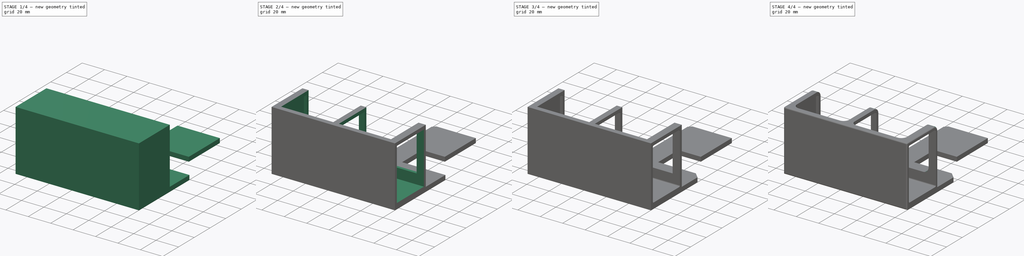
[diagram: build sequence overview — one tinted view per stage of 4, left to right]
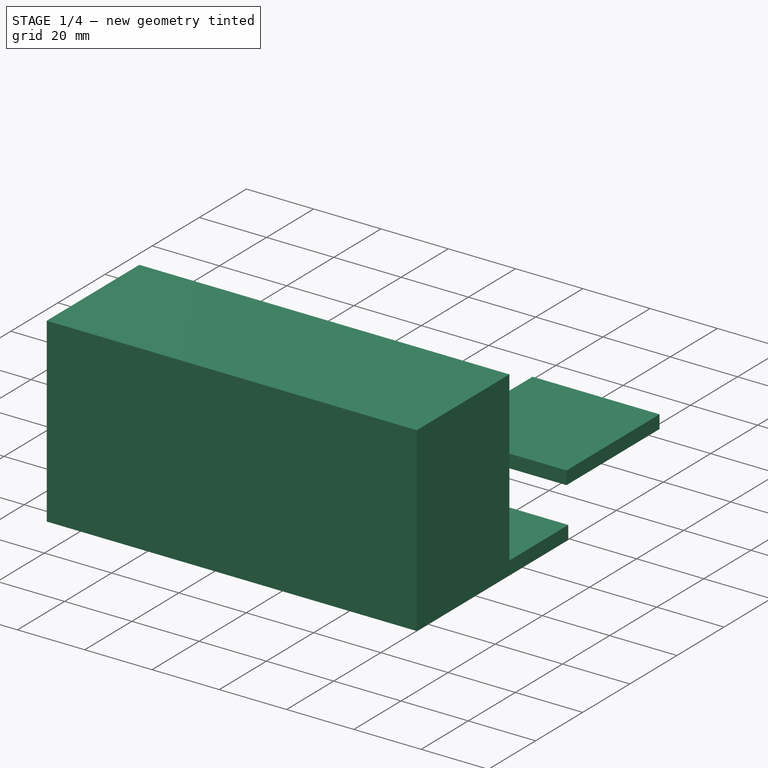
[diagram: stage 1 of 4 — iso view after this stage's code; geometry added in this stage tinted green]
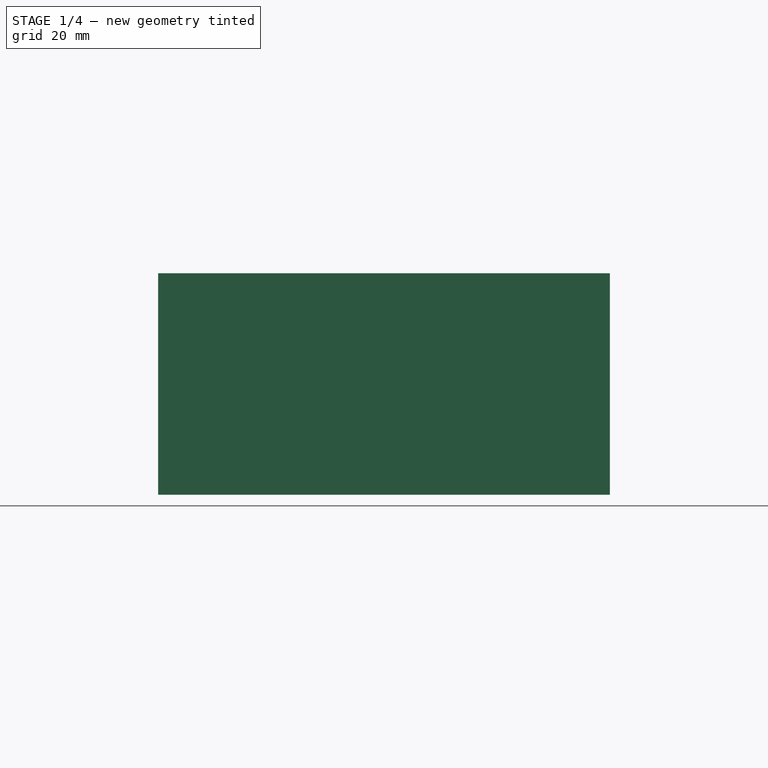
[diagram: stage 1 of 4 — front view after this stage's code; geometry added in this stage tinted green]
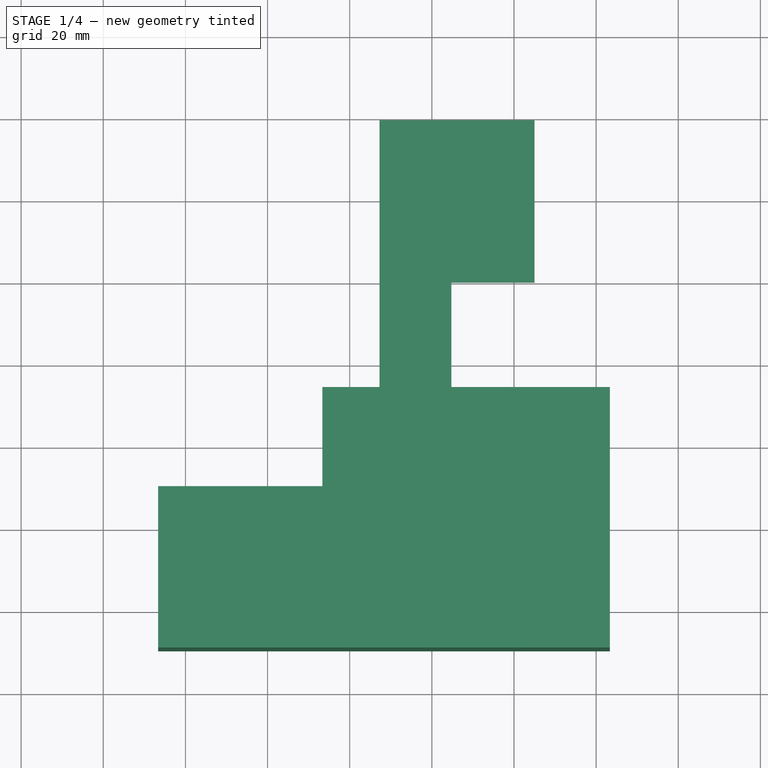
[diagram: stage 1 of 4 — top view after this stage's code; geometry added in this stage tinted green]
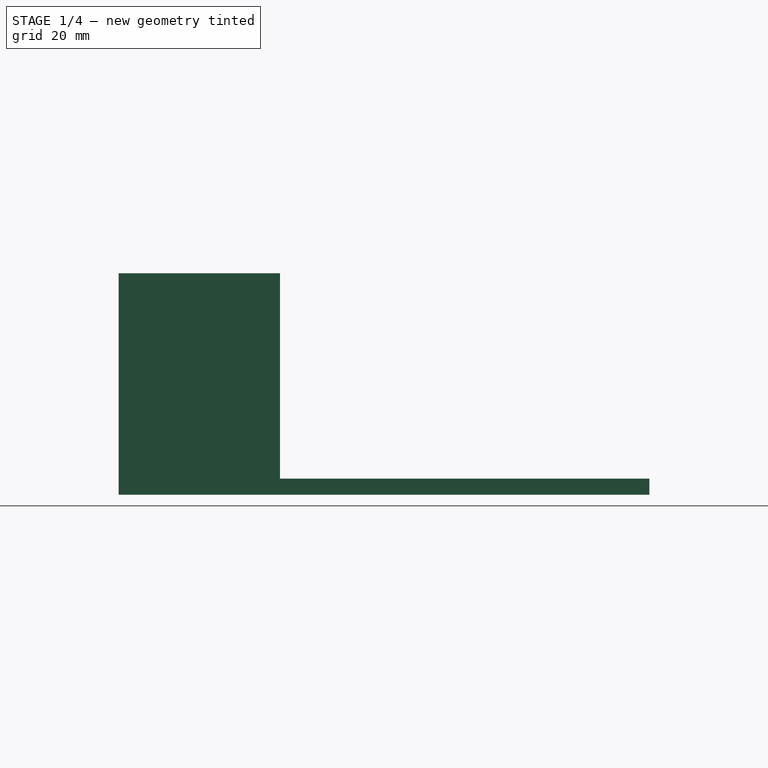
[diagram: stage 1 of 4 — right view after this stage's code; geometry added in this stage tinted green]
FCSTD DOCUMENT  (FreeCAD 1.0R39109 (Git))
Label: PortableMonitor_BatteryHolder_Base
License: All rights reserved
LicenseURL: https://en.wikipedia.org/wiki/All_rights_reserved
objects: Sketcher::SketchObject×4, PartDesign::Fillet×4, PartDesign::Pad×2, PartDesign::Pocket×2, PartDesign::Chamfer×2, PartDesign::Body×1
note: 39 computed .brp shape members not serialized (recipe doc carries the construction recipe); baked Part::Feature solids carry a one-line shape summary decoded from their .brp

FEATURE [Sketcher::SketchObject] Sketch  label="Sketch_BasePad_mateWithVESA"
  ArcFitTolerance = 1e-06
  AttachmentSupport = -> [XY_Plane]
  FullyConstrained = true
  MakeInternals = false
  MapMode = 5
  sketch-geometry (21):
    g0: LineSegment [constr] StartX=-45 StartY=-45 StartZ=0 EndX=45 EndY=-45 EndZ=0
    g1: LineSegment [constr] StartX=45 StartY=-45 StartZ=0 EndX=45 EndY=45 EndZ=0
    g2: LineSegment [constr] StartX=45 StartY=45 StartZ=0 EndX=-45 EndY=45 EndZ=0
    g3: LineSegment [constr] StartX=-45 StartY=45 StartZ=0 EndX=-45 EndY=-45 EndZ=0
    g4: GeomPoint [constr] X=0 Y=0 Z=0
    g5: GeomPoint [constr] X=7.25 Y=-45 Z=0
    g6: GeomPoint [constr] X=45 Y=19.75 Z=0
    g7: LineSegment [constr] StartX=7.25 StartY=-45 StartZ=0 EndX=7.25 EndY=19.75 EndZ=0
    g8: LineSegment StartX=7.25 StartY=19.75 StartZ=0 EndX=45 EndY=19.75 EndZ=0
    g9: LineSegment StartX=45 StartY=-19.75 StartZ=0 EndX=24.75 EndY=-19.75 EndZ=0
    g10: LineSegment [constr] StartX=24.75 StartY=-19.75 StartZ=0 EndX=24.75 EndY=-45 EndZ=0
    g11: LineSegment StartX=7.25 StartY=19.75 StartZ=0 EndX=7.25 EndY=-45.2 EndZ=0
    g12: LineSegment StartX=45 StartY=19.75 StartZ=0 EndX=45 EndY=-19.75 EndZ=0
    g13: LineSegment StartX=24.75 StartY=-45.2 StartZ=0 EndX=24.75 EndY=-19.75 EndZ=0
    g14: LineSegment StartX=-6.65 StartY=-45.2 StartZ=0 EndX=7.25 EndY=-45.2 EndZ=0
    g15: LineSegment StartX=-6.65 StartY=-70.2 StartZ=0 EndX=-6.65 EndY=-45.2 EndZ=0
    g16: LineSegment StartX=-46.65 StartY=-70.2 StartZ=0 EndX=-6.65 EndY=-70.2 EndZ=0
    g17: LineSegment StartX=-46.65 StartY=-70.2 StartZ=0 EndX=-46.65 EndY=-109.5 EndZ=0
    g18: LineSegment StartX=-46.65 StartY=-109.5 StartZ=0 EndX=63.35 EndY=-109.5 EndZ=0
    g19: LineSegment StartX=63.35 StartY=-109.5 StartZ=0 EndX=63.35 EndY=-45.2 EndZ=0
    g20: LineSegment StartX=63.35 StartY=-45.2 StartZ=0 EndX=24.75 EndY=-45.2 EndZ=0
  constraints (60):
    c: Coincident(g0,g1)
    c: Coincident(g1,g2)
    c: Coincident(g2,g3)
    c: Coincident(g3,g0)
    c: Horizontal(g0)
    c: Horizontal(g2)
    c: Vertical(g1)
    c: Vertical(g3)
    c: Symmetric(g2,g0,g4)
    c: Distance(g1,g3) = 90
    c: Distance(g0,g2) = 90
    c: Coincident(g4,g-1)
    c: PointOnObject(g5,g0)
    c: Distance(g5,g-2) = 7.25
    c: PointOnObject(g6,g1)
    c: Distance(g6,g-1) = 19.75
    c: Distance(g7) = 64.75
    c: Coincident(g7,g5)
    c: Vertical(g7)
    c: Coincident(g8,g7)
    c: Coincident(g8,g6)
    c: PointOnObject(g10,g0)
    c: PointOnObject(g9,g1)
    c: Horizontal(g9)
    c: Coincident(g10,g9)
    c: DistanceX(g5,g10) = 17.5
    c: Distance(g9,g8) = 39.5
    c: DistanceX(g9,g9) = 20.25
    c: Distance(g11) = 64.95
    c: Coincident(g11,g7)
    c: PointOnObject(g11,g7)
    c: Coincident(g12,g6)
    c: Coincident(g12,g9)
    c: DistanceY(g10,g10) = 25.25
    c: Distance(g13) = 25.45
    c: Vertical(g13)
    c: Coincident(g13,g9)
    c: Distance(g14) = 13.9
    c: Horizontal(g14)
    c: Coincident(g14,g11)
    c: Distance(g15) = 25
    c: Vertical(g15)
    c: Coincident(g15,g14)
    c: Distance(g16) = 40
    c: Horizontal(g16)
    c: Coincident(g16,g15)
    c: Distance(g17) = 39.3
    c: Coincident(g17,g16)
    c: Vertical(g17)
    c: Distance(g18) = 110
    c: Coincident(g18,g17)
    c: Horizontal(g18)
    c: Distance(g19) = 64.3
    c: Coincident(g19,g18)
    c: Vertical(g19)
    c: Coincident(g20,g19)
    c: Coincident(g20,g13)
    c: DistanceY(g17,g4) = 109.5
    c: DistanceX(g17,g4) = 46.65
    c: Distance(g18,g0) = 64.5
FEATURE [PartDesign::Pad] Pad  label="BasePad_mateWithVESA"
  Direction = (0,0,1)
  Length = 3.95
  Length2 = 10
  Profile = -> Sketch
  ReferenceAxis = -> Sketch [N_Axis]
  Refine = true
  Suppressed = false
  Type = 0
FEATURE [Sketcher::SketchObject] Sketch001  label="Sketch_Batt_area"
  ArcFitTolerance = 1e-06
  AttachmentSupport = -> [Pad]
  FullyConstrained = true
  MakeInternals = false
  MapMode = 5
  Placement = pos=(0,0,3.95) rot=(0,0,1;0rad)
  sketch-geometry (16):
    g0: GeomPoint [constr] X=-46.65 Y=-109.5 Z=0
    g1: LineSegment [constr] StartX=-46.65 StartY=-109.5 StartZ=0 EndX=63.35 EndY=-109.5 EndZ=0
    g2: LineSegment [constr] StartX=63.35 StartY=-109.5 StartZ=0 EndX=63.35 EndY=-70.2 EndZ=0
    g3: LineSegment [constr] StartX=63.35 StartY=-70.2 StartZ=0 EndX=-46.65 EndY=-70.2 EndZ=0
    g4: LineSegment [constr] StartX=-46.65 StartY=-70.2 StartZ=0 EndX=-46.65 EndY=-109.5 EndZ=0
    g5: GeomPoint [constr] X=8.35 Y=-89.85 Z=0
    g6: LineSegment [constr] StartX=-38.15 StartY=-106.55 StartZ=0 EndX=104.85 EndY=-106.55 EndZ=0
    g7: LineSegment [constr] StartX=104.85 StartY=-106.55 StartZ=0 EndX=104.85 EndY=-73.15 EndZ=0
    g8: LineSegment [constr] StartX=104.85 StartY=-73.15 StartZ=0 EndX=-38.15 EndY=-73.15 EndZ=0
    g9: LineSegment [constr] StartX=-38.15 StartY=-73.15 StartZ=0 EndX=-38.15 EndY=-106.55 EndZ=0
    g10: GeomPoint [constr] X=33.35 Y=-89.85 Z=0
    g11: LineSegment StartX=-46.65 StartY=-109.5 StartZ=0 EndX=63.35 EndY=-109.5 EndZ=0
    g12: LineSegment StartX=63.35 StartY=-109.5 StartZ=0 EndX=63.35 EndY=-70.2 EndZ=0
    g13: LineSegment StartX=63.35 StartY=-70.2 StartZ=0 EndX=-46.65 EndY=-70.2 EndZ=0
    g14: LineSegment StartX=-46.65 StartY=-70.2 StartZ=0 EndX=-46.65 EndY=-109.5 EndZ=0
    g15: GeomPoint [constr] X=8.35 Y=-89.85 Z=0
  constraints (38):
    c: DistanceY(g0,g-1) = 109.5
    c: DistanceX(g0,g-1) = 46.65
    c: Coincident(g1,g2)
    c: Coincident(g2,g3)
    c: Coincident(g3,g4)
    c: Coincident(g4,g1)
    c: Horizontal(g1)
    c: Horizontal(g3)
    c: Vertical(g2)
    c: Vertical(g4)
    c: Symmetric(g3,g1,g5)
    c: Distance(g2,g4) = 110
    c: Distance(g1,g3) = 39.3
    c: Coincident(g1,g0)
    c: Coincident(g6,g7)
    c: Coincident(g7,g8)
    c: Coincident(g8,g9)
    c: Coincident(g9,g6)
    c: Horizontal(g6)
    c: Horizontal(g8)
    c: Vertical(g7)
    c: Vertical(g9)
    c: Symmetric(g8,g6,g10)
    c: Distance(g7,g9) = 143
    c: Distance(g6,g8) = 33.4
    c: Horizontal(g10,g5)
    c: DistanceX(g5,g10) = 25
    c: Coincident(g11,g12)
    c: Coincident(g12,g13)
    c: Coincident(g13,g14)
    c: Coincident(g14,g11)
    c: Horizontal(g11)
    c: Horizontal(g13)
    c: Vertical(g12)
    c: Vertical(g14)
    c: Symmetric(g13,g11,g15)
    c: Coincident(g15,g5)
    c: Coincident(g12,g2)
FEATURE [PartDesign::Pad] Pad001  label="Batt_area"
  BaseFeature = -> Pad
  Direction = (0,0,1)
  Length = 50
  Length2 = 10
  Profile = -> Sketch001
  ReferenceAxis = -> Sketch001 [N_Axis]
  Refine = true
  Suppressed = false
  Type = 0
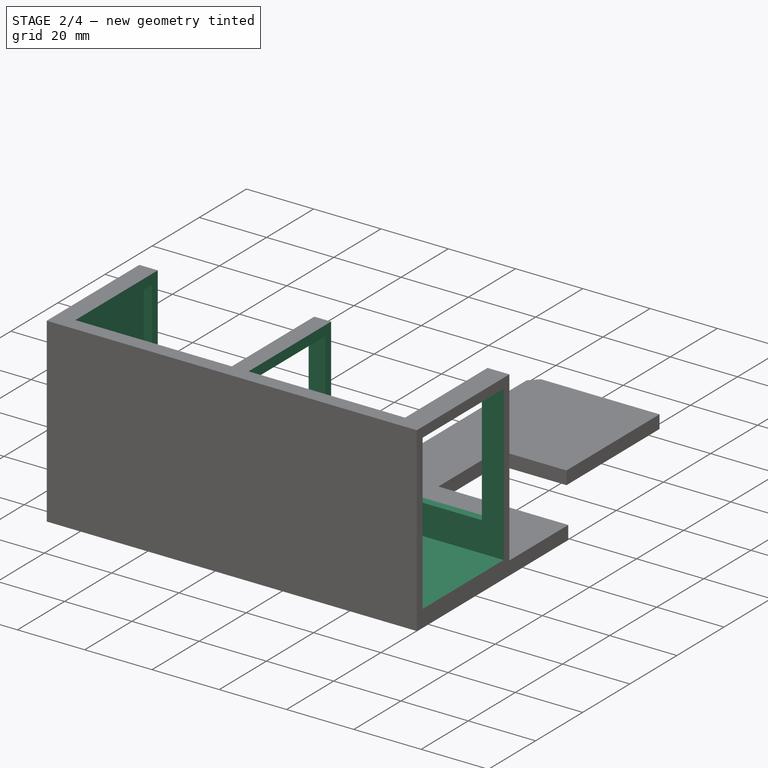
[diagram: stage 2 of 4 — iso view after this stage's code; geometry added in this stage tinted green]
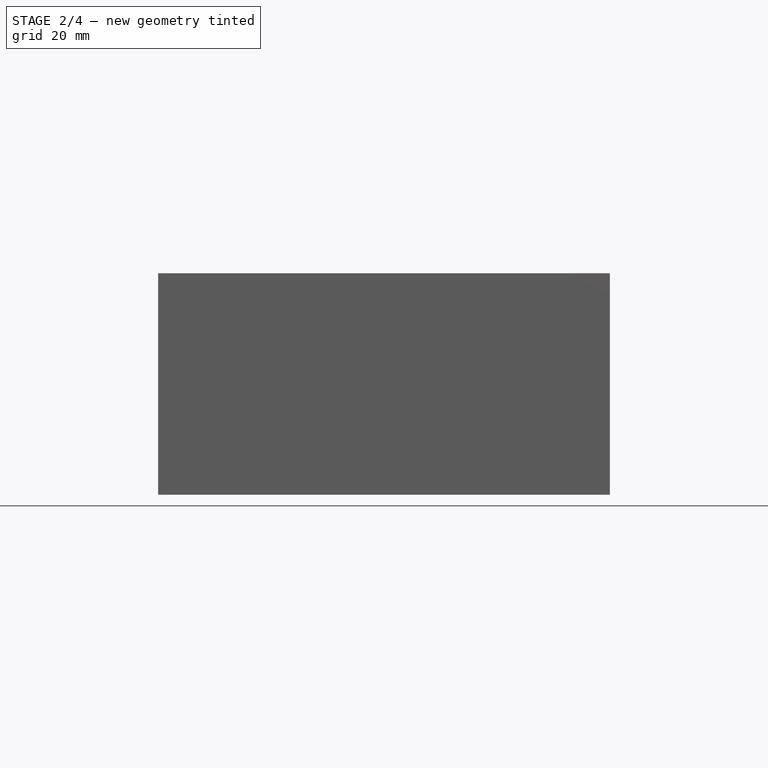
[diagram: stage 2 of 4 — front view after this stage's code; geometry added in this stage tinted green]
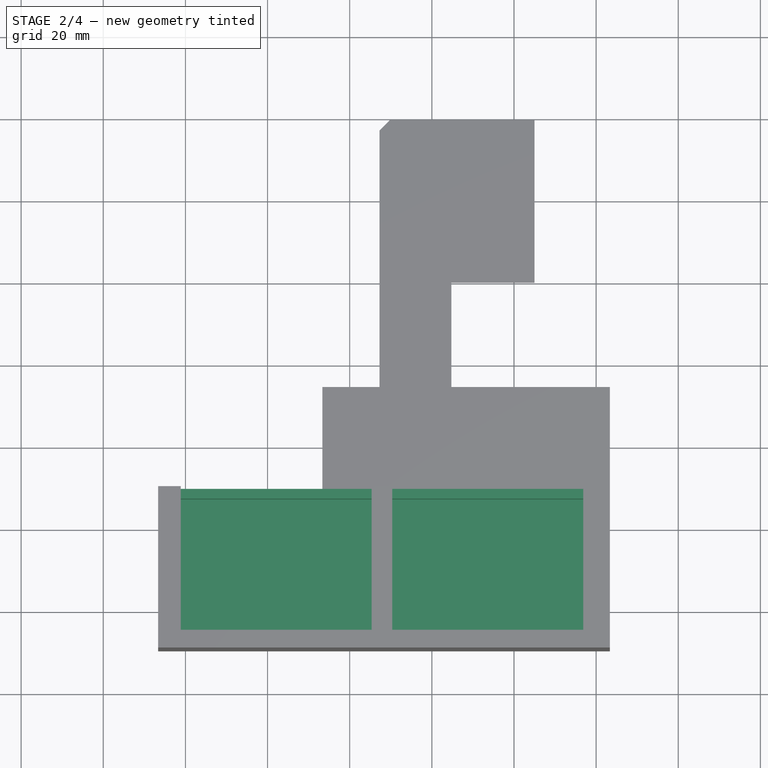
[diagram: stage 2 of 4 — top view after this stage's code; geometry added in this stage tinted green]
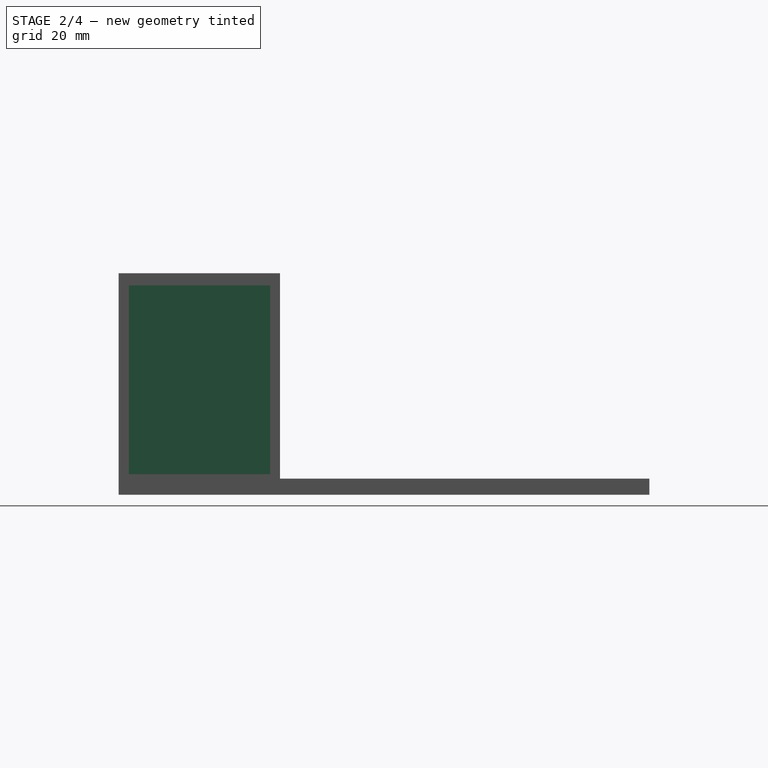
[diagram: stage 2 of 4 — right view after this stage's code; geometry added in this stage tinted green]
FEATURE [Sketcher::SketchObject] Sketch002  label="Sketch_Hole_Batt_Placement"
  ArcFitTolerance = 1e-06
  AttachmentSupport = -> [Pad001]
  FullyConstrained = true
  MakeInternals = false
  MapMode = 5
  Placement = pos=(63.35,0,0) rot=(0.57735,0.57735,0.57735;2.0944rad)
  sketch-geometry (6):
    g0: GeomPoint X=-109.5 Y=0 Z=0
    g1: LineSegment StartX=-107 StartY=5 StartZ=0 EndX=-72.6 EndY=5 EndZ=0
    g2: LineSegment StartX=-72.6 StartY=5 StartZ=0 EndX=-72.6 EndY=51 EndZ=0
    g3: LineSegment StartX=-72.6 StartY=51 StartZ=0 EndX=-107 EndY=51 EndZ=0
    g4: LineSegment StartX=-107 StartY=51 StartZ=0 EndX=-107 EndY=5 EndZ=0
    g5: GeomPoint [constr] X=-89.8 Y=28 Z=0
  constraints (16):
    c: PointOnObject(g0,g-1)
    c: DistanceX(g0,g-1) = 109.5
    c: Coincident(g1,g2)
    c: Coincident(g2,g3)
    c: Coincident(g3,g4)
    c: Coincident(g4,g1)
    c: Horizontal(g1)
    c: Horizontal(g3)
    c: Vertical(g2)
    c: Vertical(g4)
    c: Symmetric(g3,g1,g5)
    c: Distance(g2,g4) = 34.4
    c: Distance(g1,g3) = 46
    c: Distance(g1,g-1) = 5
    c: DistanceX(g0,g1) = 2.5
    c: Distance(g-2,g2) = 72.6
FEATURE [PartDesign::Pocket] Pocket  label="Hole_Batt_Placement"
  BaseFeature = -> Pad001
  Direction = (-1,0,0)
  Length = 107
  Length2 = 5
  Profile = -> Sketch002
  ReferenceAxis = -> Sketch002 [N_Axis]
  Refine = true
  Suppressed = false
  Type = 0
FEATURE [Sketcher::SketchObject] Sketch003  label="Sketch_Hole_BattWindowFrame"
  ArcFitTolerance = 1e-06
  AttachmentSupport = -> [Pocket]
  FullyConstrained = true
  MakeInternals = false
  MapMode = 5
  Placement = pos=(0,0,53.95) rot=(0,0,1;0rad)
  sketch-geometry (11):
    g0: GeomPoint X=-46.65 Y=-109.5 Z=0
    g1: LineSegment StartX=-41.15 StartY=-105.2 StartZ=0 EndX=5.35 EndY=-105.2 EndZ=0
    g2: LineSegment StartX=5.35 StartY=-105.2 StartZ=0 EndX=5.35 EndY=-70.2 EndZ=0
    g3: LineSegment StartX=5.35 StartY=-70.2 StartZ=0 EndX=-41.15 EndY=-70.2 EndZ=0
    g4: LineSegment StartX=-41.15 StartY=-70.2 StartZ=0 EndX=-41.15 EndY=-105.2 EndZ=0
    g5: GeomPoint [constr] X=-17.9 Y=-87.7 Z=0
    g6: LineSegment StartX=10.35 StartY=-105.2 StartZ=0 EndX=56.85 EndY=-105.2 EndZ=0
    g7: LineSegment StartX=56.85 StartY=-105.2 StartZ=0 EndX=56.85 EndY=-70.2 EndZ=0
    g8: LineSegment StartX=56.85 StartY=-70.2 StartZ=0 EndX=10.35 EndY=-70.2 EndZ=0
    g9: LineSegment StartX=10.35 StartY=-70.2 StartZ=0 EndX=10.35 EndY=-105.2 EndZ=0
    g10: GeomPoint [constr] X=33.6 Y=-87.7 Z=0
  constraints (28):
    c: DistanceY(g0,g-1) = 109.5
    c: DistanceX(g0,g-1) = 46.65
    c: Coincident(g1,g2)
    c: Coincident(g2,g3)
    c: Coincident(g3,g4)
    c: Coincident(g4,g1)
    c: Horizontal(g1)
    c: Horizontal(g3)
    c: Vertical(g2)
    c: Vertical(g4)
    c: Symmetric(g3,g1,g5)
    c: Distance(g2,g4) = 46.5
    c: Distance(g1,g3) = 35
    c: DistanceX(g0,g1) = 5.5
    c: Distance(g0,g1) = 4.3
    c: Coincident(g6,g7)
    c: Coincident(g7,g8)
    c: Coincident(g8,g9)
    c: Coincident(g9,g6)
    c: Horizontal(g6)
    c: Horizontal(g8)
    c: Vertical(g7)
    c: Vertical(g9)
    c: Symmetric(g8,g6,g10)
    c: Distance(g7,g9) = 46.5
    c: Distance(g6,g8) = 35
    c: Horizontal(g10,g5)
    c: Distance(g9,g2) = 5
FEATURE [PartDesign::Pocket] Pocket001  label="Hole_BattWindowFrame"
  BaseFeature = -> Pocket
  Direction = (0,0,-1)
  Length = 40
  Length2 = 5
  Profile = -> Sketch003
  ReferenceAxis = -> Sketch003 [N_Axis]
  Refine = true
  Suppressed = false
  Type = 0
FEATURE [PartDesign::Chamfer] Chamfer  label="Chamfer_BH_VESAmountInner"
  Angle = 45
  Base = -> Pocket001 [Edge84]
  BaseFeature = -> Pocket001
  ChamferType = 0
  FlipDirection = false
  Refine = true
  Size = 2.5
  Size2 = 1
  SupportTransform = false
  Suppressed = false
  UseAllEdges = false
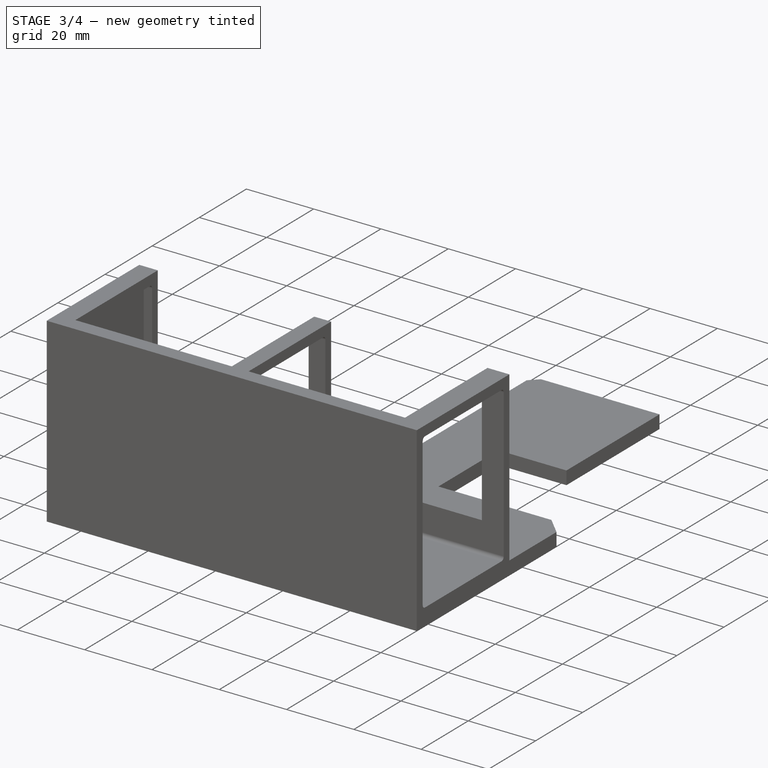
[diagram: stage 3 of 4 — iso view after this stage's code; geometry added in this stage tinted green]
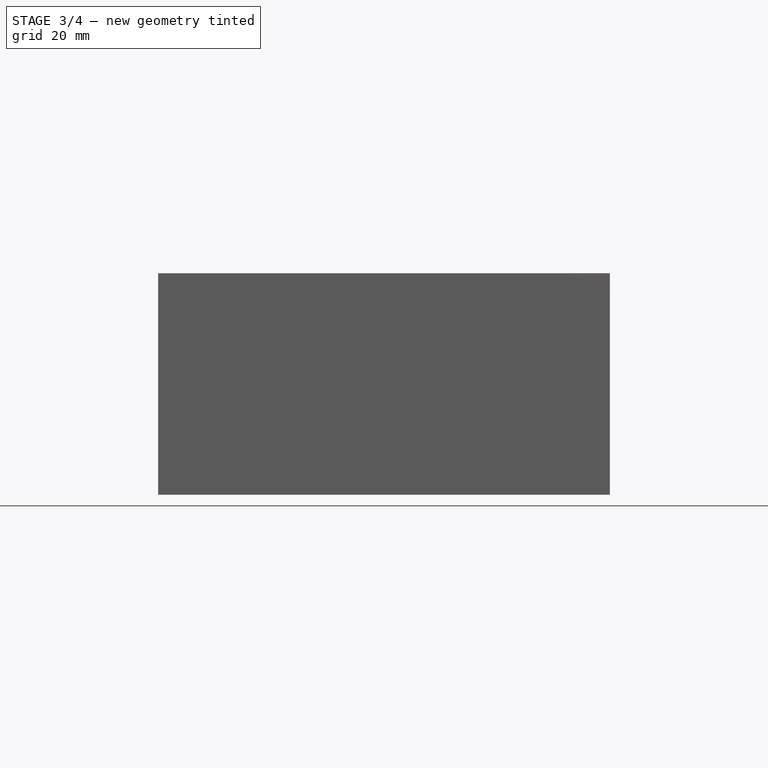
[diagram: stage 3 of 4 — front view after this stage's code; geometry added in this stage tinted green]
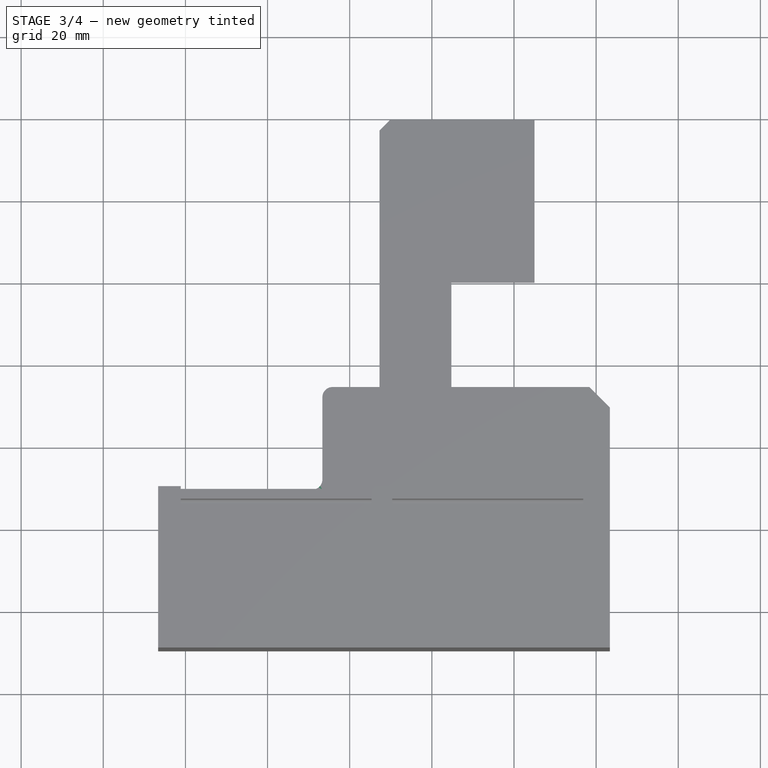
[diagram: stage 3 of 4 — top view after this stage's code; geometry added in this stage tinted green]
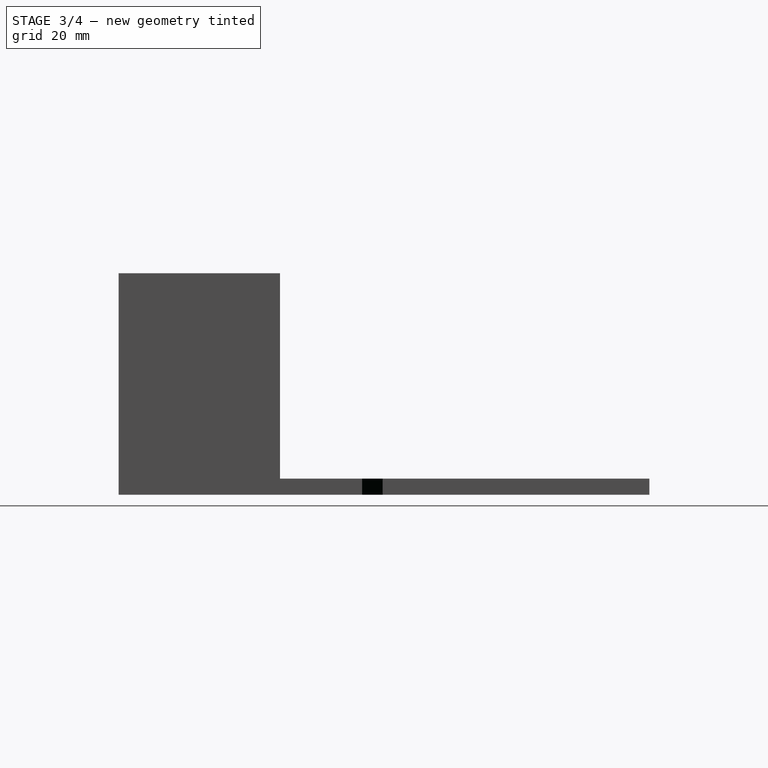
[diagram: stage 3 of 4 — right view after this stage's code; geometry added in this stage tinted green]
FEATURE [PartDesign::Chamfer] Chamfer001  label="Chamfer_BH_RightIDX"
  Angle = 45
  Base = -> Chamfer [Edge47]
  BaseFeature = -> Chamfer
  ChamferType = 0
  FlipDirection = false
  Refine = true
  Size = 5
  Size2 = 1
  SupportTransform = false
  Suppressed = false
  UseAllEdges = false
FEATURE [PartDesign::Fillet] Fillet  label="Fillet_BH_mount"
  Base = -> Chamfer001 [Edge53,Edge40]
  BaseFeature = -> Chamfer001
  Radius = 2.5
  Refine = true
  SupportTransform = false
  Suppressed = false
  UseAllEdges = false
FEATURE [PartDesign::Fillet] Fillet001  label="Fillet_BATTPlaceInner"
  Base = -> Fillet [Edge96,Edge89,Edge90,Edge92,Edge93,Edge94]
  BaseFeature = -> Fillet
  Radius = 1
  Refine = true
  SupportTransform = false
  Suppressed = false
  UseAllEdges = false
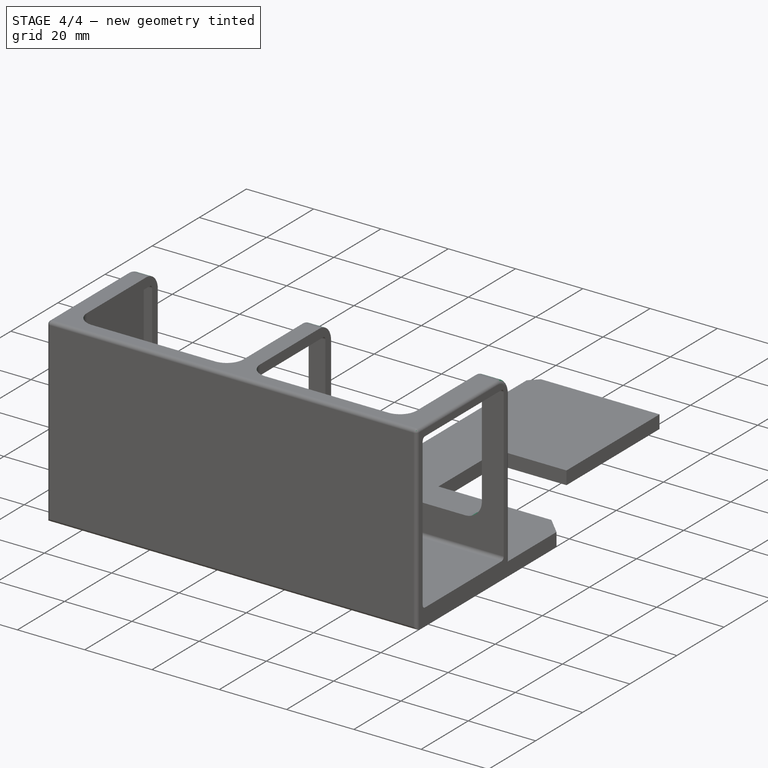
[diagram: stage 4 of 4 — iso view after this stage's code; geometry added in this stage tinted green]
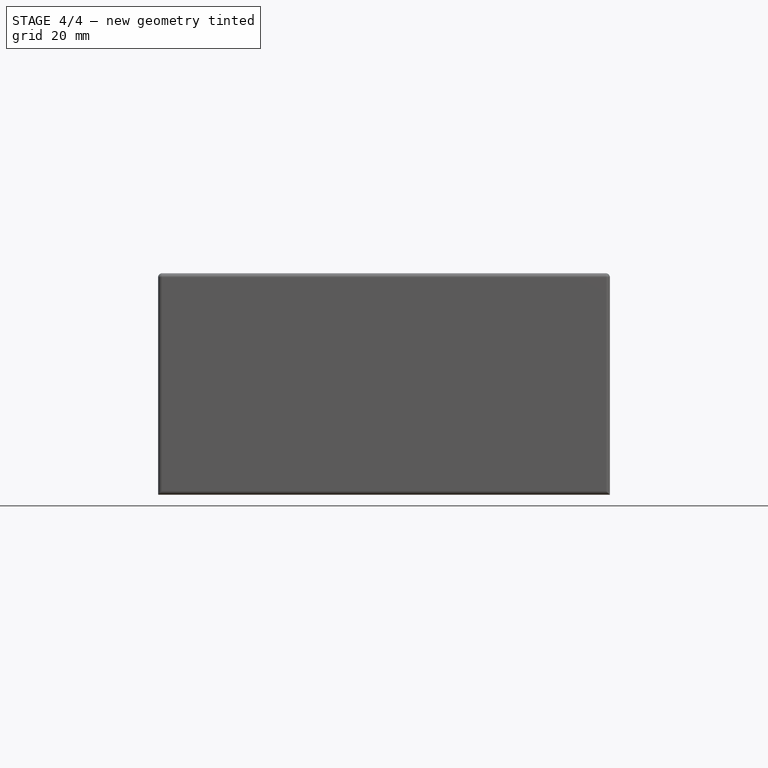
[diagram: stage 4 of 4 — front view after this stage's code; geometry added in this stage tinted green]
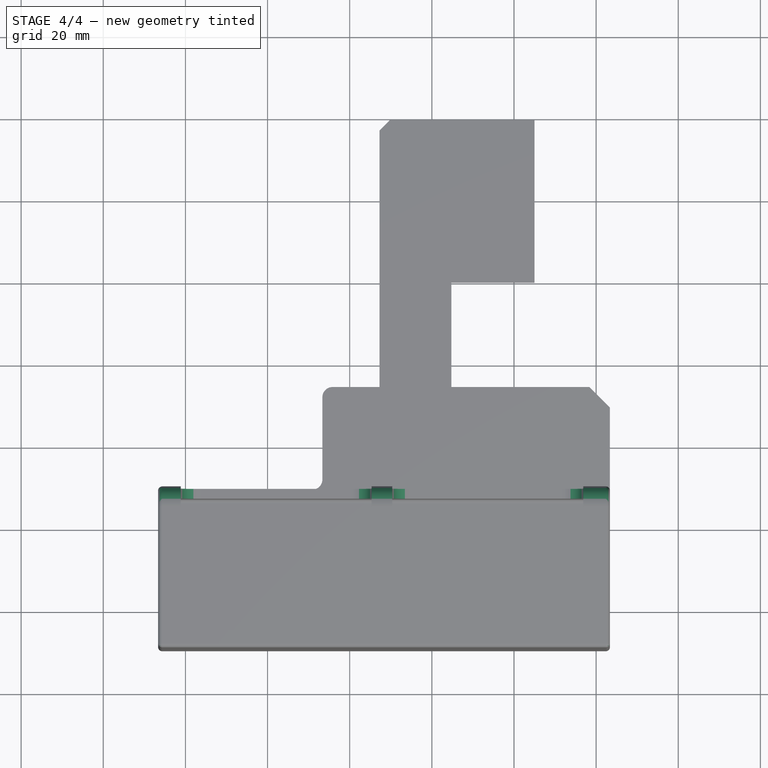
[diagram: stage 4 of 4 — top view after this stage's code; geometry added in this stage tinted green]
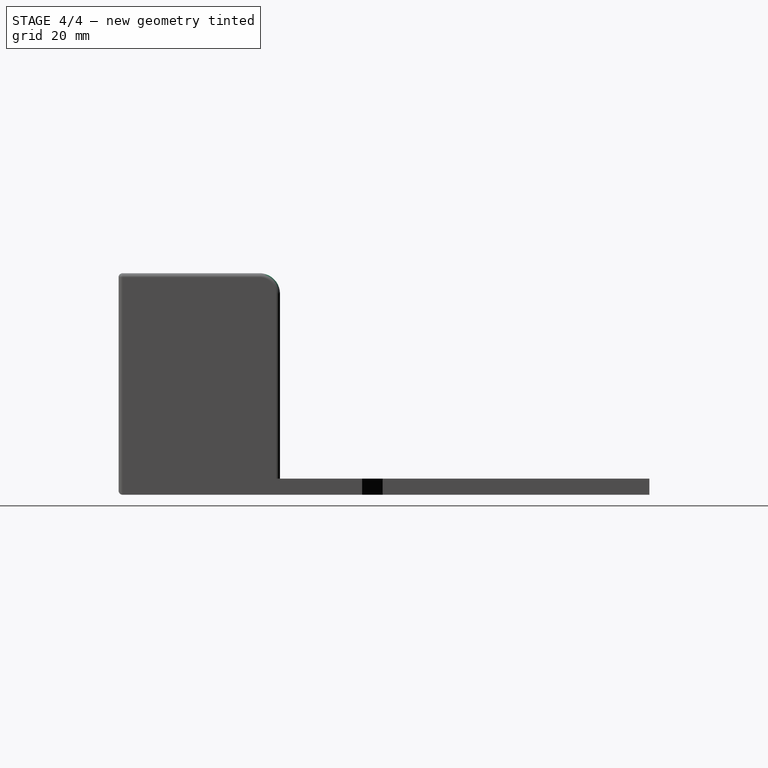
[diagram: stage 4 of 4 — right view after this stage's code; geometry added in this stage tinted green]
FEATURE [PartDesign::Fillet] Fillet002  label="Fillet_BATTWindow"
  Base = -> Fillet001 [Edge102,Edge108,Edge105,Edge99,Edge103,Edge106,Edge101,Edge98,Edge80,Edge84,Edge88]
  BaseFeature = -> Fillet001
  Radius = 5
  Refine = true
  SupportTransform = false
  Suppressed = false
  UseAllEdges = false
FEATURE [PartDesign::Fillet] Fillet003  label="Fillet_CornerEdge"
  Base = -> Fillet002 [Edge18,Edge33,Edge3,Edge16,Edge118,Edge35,Edge4,Edge2,Edge1,Edge34]
  BaseFeature = -> Fillet002
  Radius = 1
  Refine = true
  SupportTransform = false
  Suppressed = false
  UseAllEdges = false
FEATURE [PartDesign::Body] Body  label="Body_BattHolder_Base"
  AllowCompound = false
  Group = -> [Sketch,Pad,Sketch001,Pad001,Sketch002,Pocket,Sketch003,Pocket001,Chamfer,Chamfer001,Fillet,Fillet001,Fillet002,Fillet003]
  Origin = -> Origin
  Tip = -> Fillet003
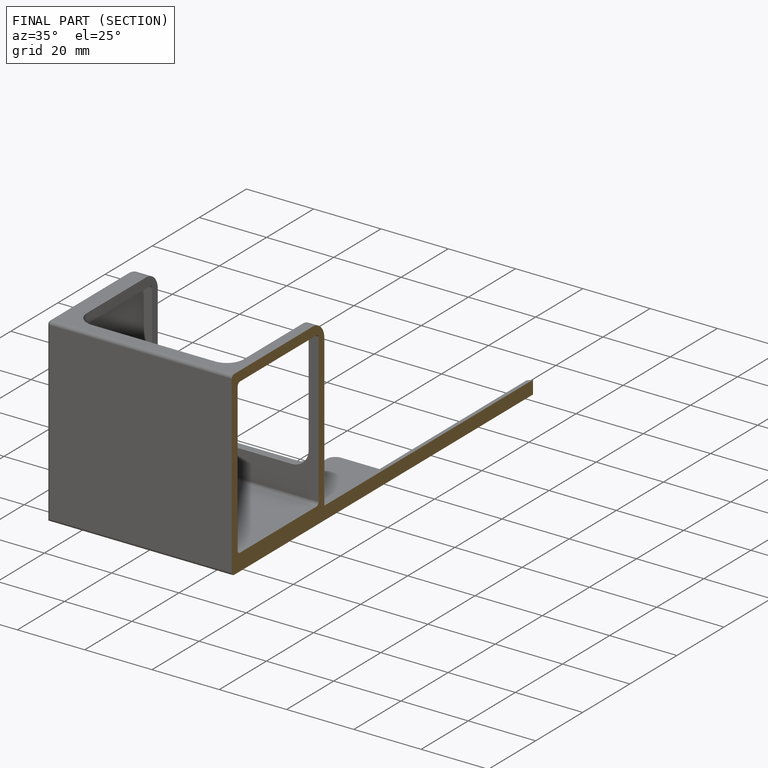
[diagram: finished part — half-section view (interior)]
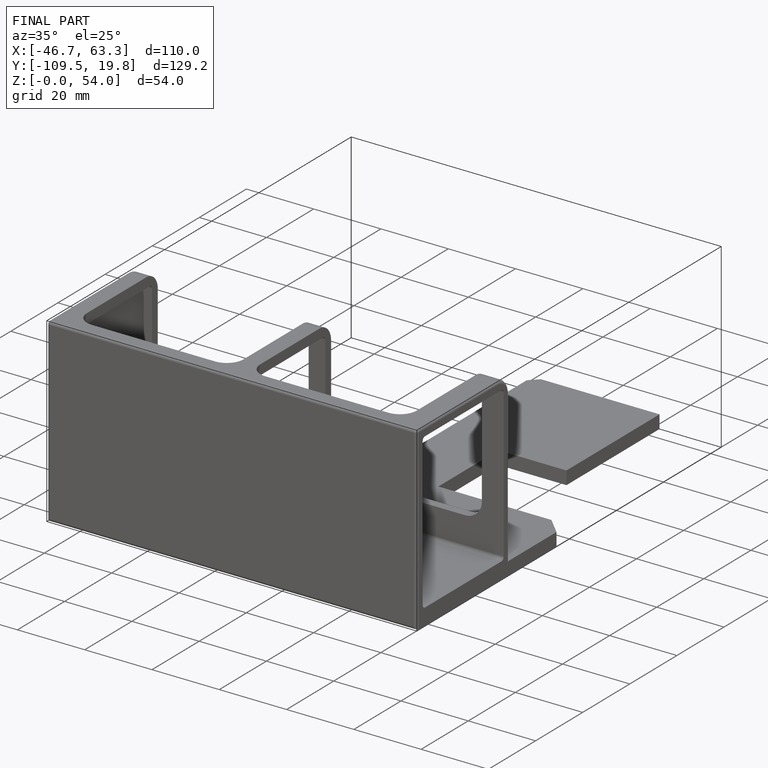
[diagram: finished part — iso view with bounding-box wireframe]
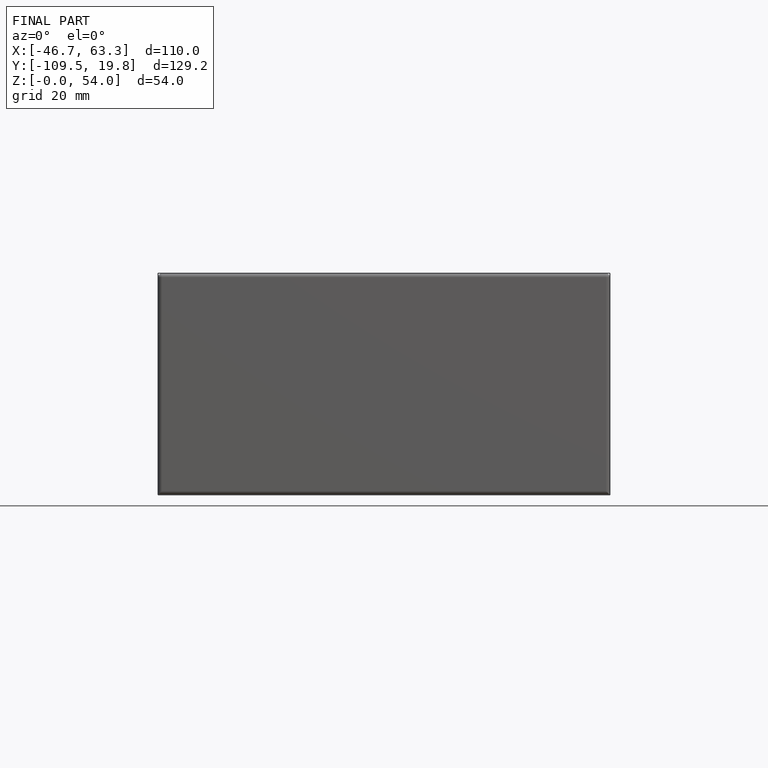
[diagram: finished part — front view with bounding-box wireframe]
